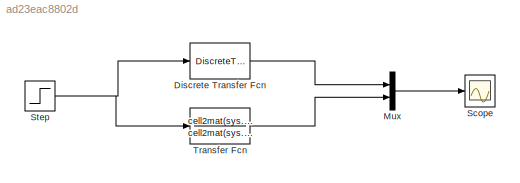
MODEL slx_ad23eac8802d
KIND model
CONFIG AbsTol = auto
CONFIG FixedStep = auto
CONFIG MaxStep = auto
CONFIG MinStep = auto
CONFIG RelTol = 1e-3
CONFIG SampleTimeConstraint = Unconstrained
CONFIG Solver = ode45
CONFIG SolverMode = Auto
CONFIG SolverName = ode45
CONFIG StartTime = 0.0
CONFIG StopTime = 20.0
BLOCK [DiscreteTransferFcn] Discrete Transfer Fcn
  Denominator = cell2mat(systd.den)
  InputPortMap = u0
  Numerator = cell2mat(systd.num)
  Ports = [1, 1]
  SampleTime = Ts
BLOCK [Mux] Mux
  DisplayOption = bar
  Inputs = 2
  Ports = [2, 1]
BLOCK [Scope] Scope
  Floating = off
  NumInputPorts = 1
  Ports = [1]
BLOCK [Step] Step
  SampleTime = 0
BLOCK [TransferFcn] Transfer Fcn
  Denominator = cell2mat(sys.den)
  Numerator = cell2mat(sys.num)
LINE Discrete Transfer Fcn:1 -> Mux:1
LINE Mux:1 -> Scope:1
NET Step:1 -> Discrete Transfer Fcn:1, Transfer Fcn:1
LINE Transfer Fcn:1 -> Mux:2
note: NET lines group one-source signal fan-out (src -> all destinations, sorted); 1:1 wires keep LINE
